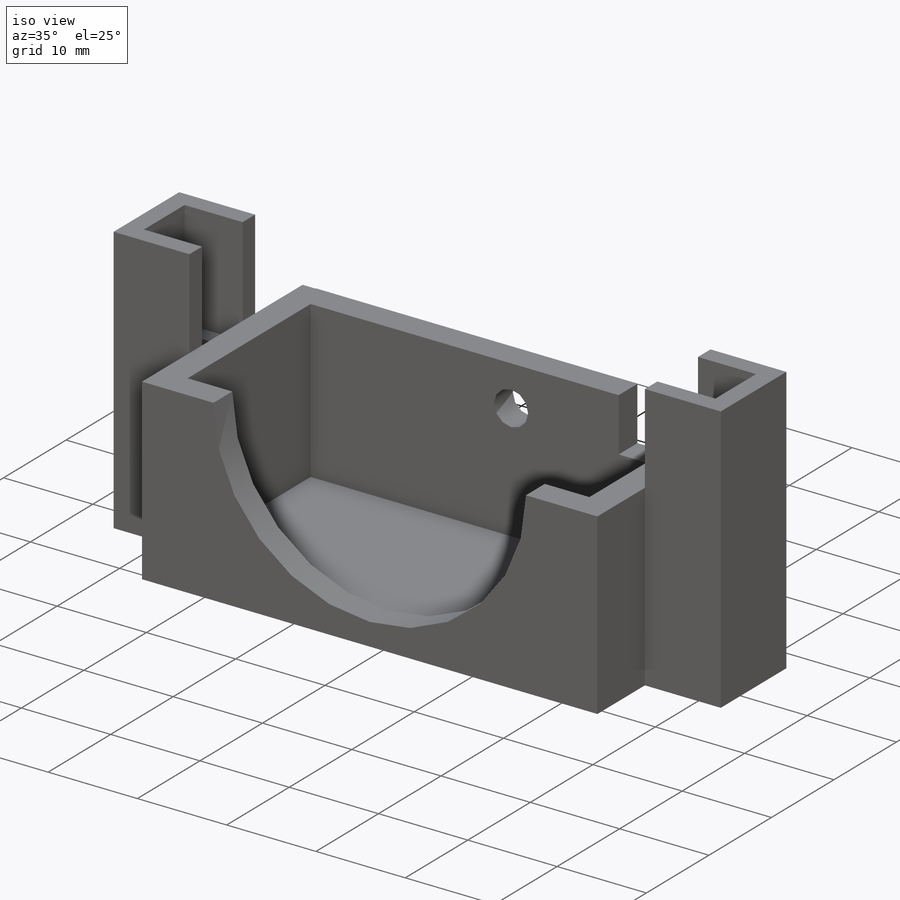
[diagram: iso view]
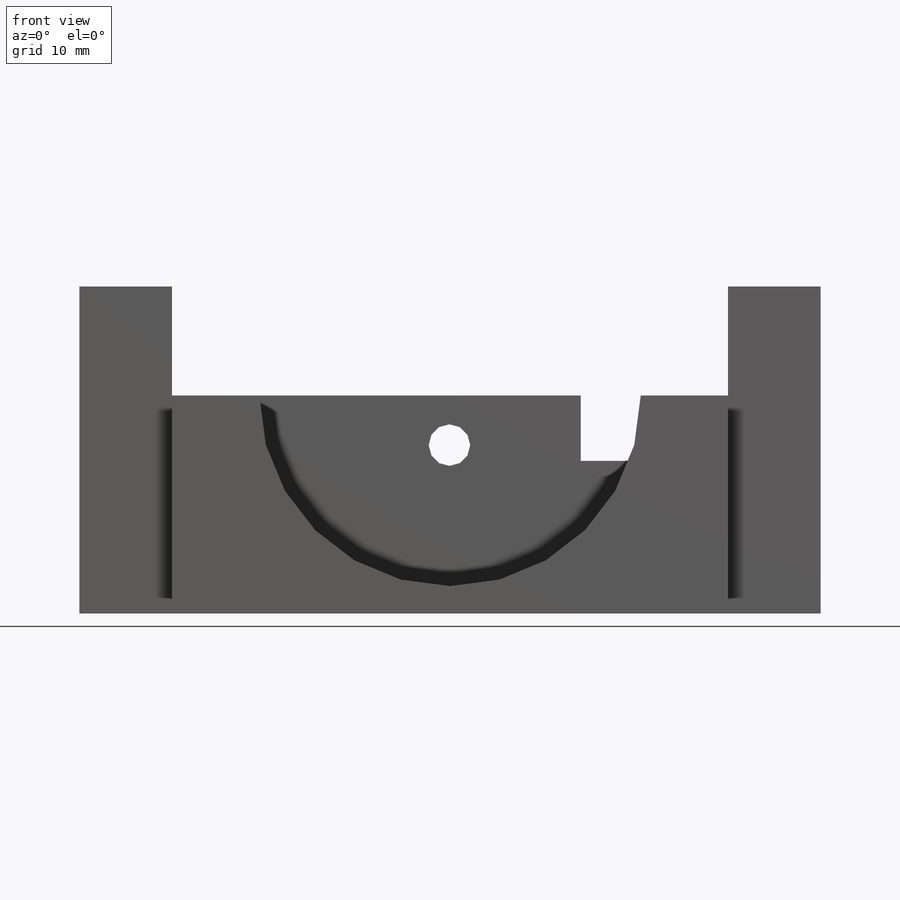
[diagram: front view]
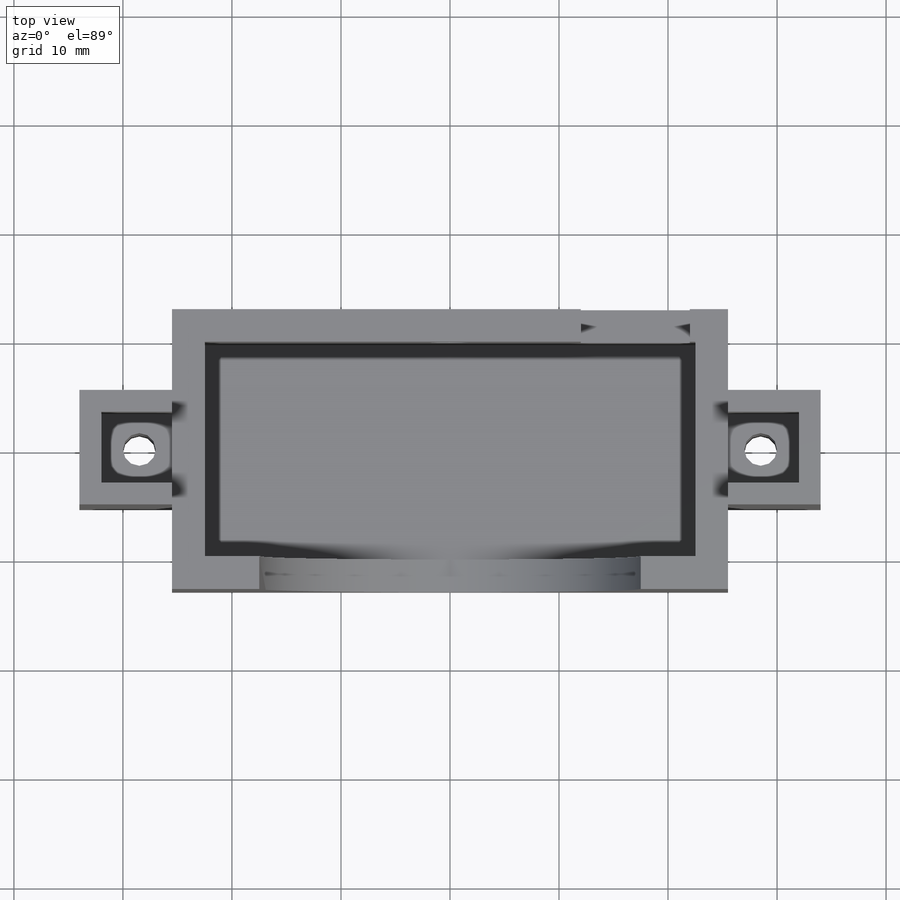
[diagram: top view]
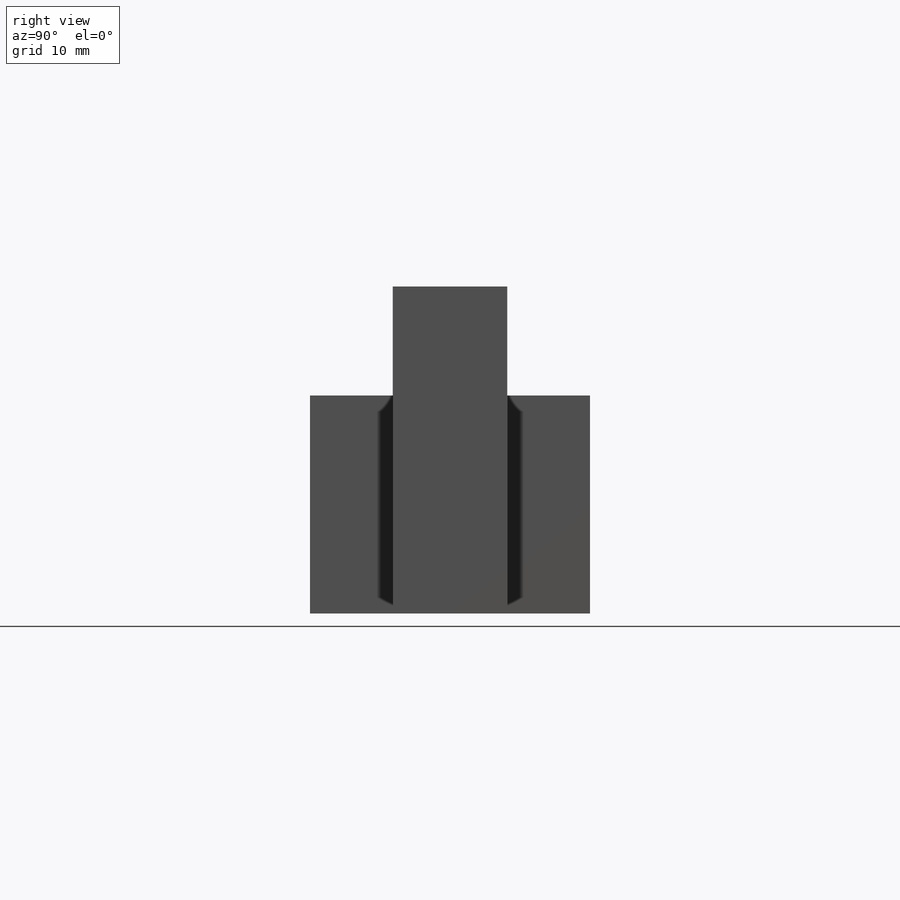
[diagram: right view]
SOLIDWORKS PART (.sldprt)
format: sldprt  version: not decoded by parser v0  size: 313,344 bytes
history: native  units: mm
features: sketch x6, extrude x3, cut_extrude x3, material x1 (+13 scaffold rows collapsed)
feature tree (26):
  scaffold x13  (default folders/planes/origin — collapsed)
  material  "Material <not specified>"
  sketch  "Sketch1"  dims[c1.D1=45.0mm c1.D2=19.68mm c1.D3=50.0mm c1.D4=25.18mm c2.D3=3.0mm c2.D4=3.0mm c2.D5=3.0mm c2.D6=3.0mm]
  extrude  "Boss-Extrude1"  Depth=20mm
  sketch  "Sketch2"  dims[D1=45.0mm D2=19.68mm]
  cut_extrude  "Cut-Extrude1"  Depth=17.5mm
  sketch  "Sketch9"  dims[D1=35.0mm]
  cut_extrude  "Cut-Extrude5"  [1 undecoded]
  sketch  "Sketch10"  dims[D1=2.5mm D2=3.5mm D3=44.0mm D4=17.5mm D5=12.95mm D6=22.05mm D7=10.0mm D8=6.0mm]
  cut_extrude  "Cut-Extrude6"  [1 undecoded]
  sketch  "Sketch11"  dims[c1.D1=3.0mm c1.D2=3.0mm c1.D3=6.5mm c1.D4=6.0mm c2.D3=6.5mm c2.D4=6.5mm]
  extrude  "Boss-Extrude4"  Depth=18mm
  sketch  "Sketch12"  dims[D1=2.0mm D2=2.0mm]
  extrude  "Boss-Extrude5"  Depth=30mm
decode coverage: 10 of 12 modeling features carry decoded parameters
note: 2 parameter values undecoded
note: suppression state not decoded; provenance and decode notes live in map.json
